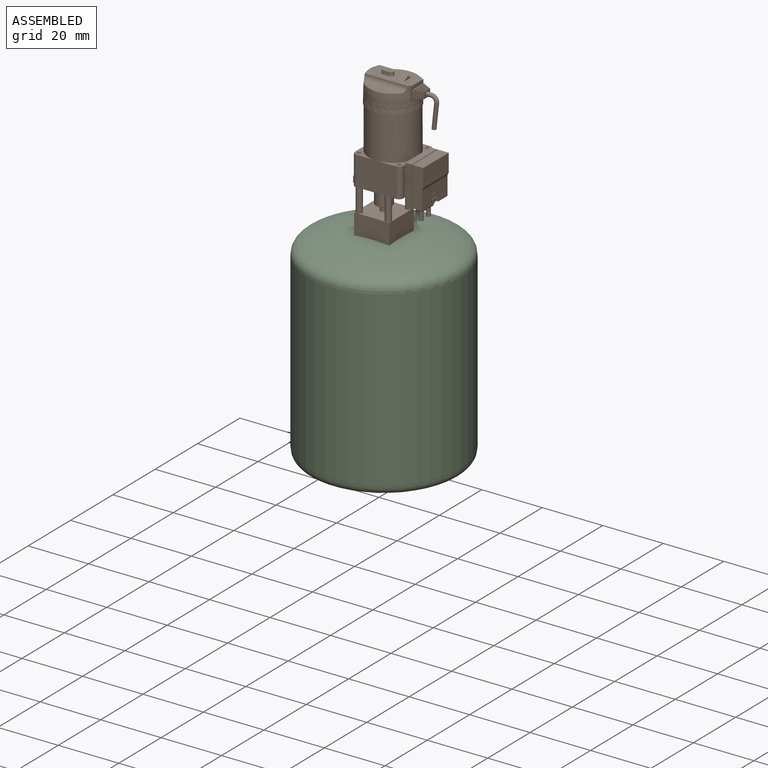
[diagram: assembled view]
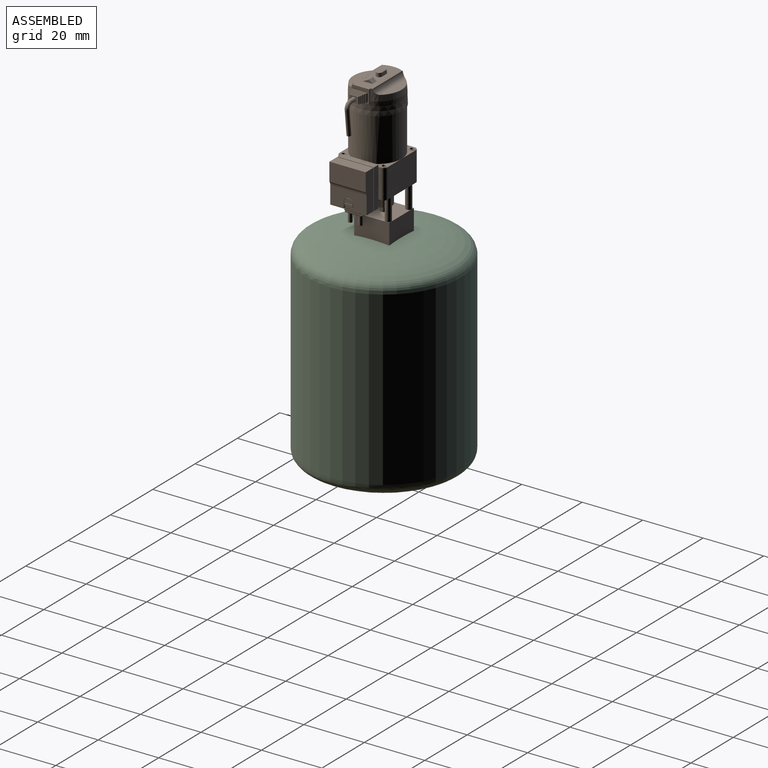
[diagram: assembled view, second angle]
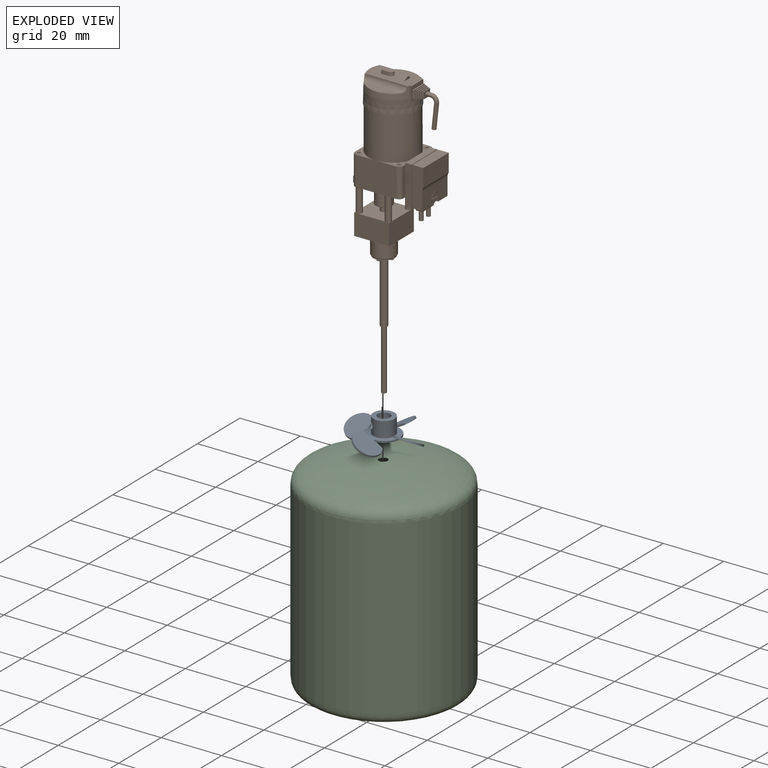
[diagram: exploded view]
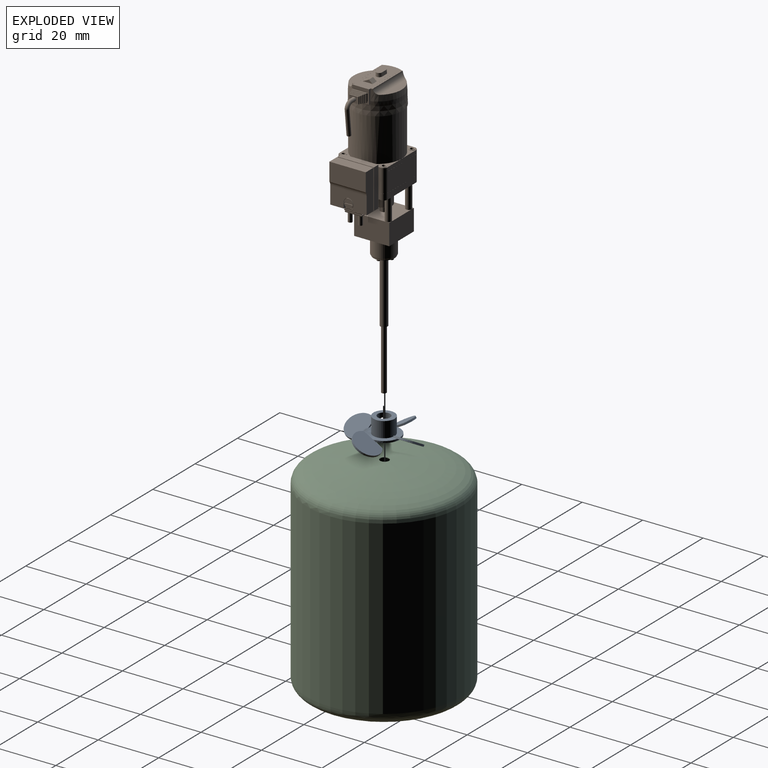
[diagram: exploded view, second angle]
ASSEMBLY  parts=3 mates=2
PART A: 33 faces, bbox 25x8x25 mm
  f0: cylinder r=2.04mm len=6mm, axis (0,-1,0), area 73.3mm2, adj f8,f10,f32
  f1: cylinder r=3.5mm len=7mm, axis (0,-1,0), area 109mm2, adj f3,f10,f31
  f2: plane 10.5x10.5mm, normal (0,-1,0), area 60.6mm2, adj f4,f5,f6,f7,f9,f11,f15,f16
  f3: plane 10.5x10.5mm, normal (0,1,0), area 48.1mm2, adj f1,f4,f5,f6,f7,f12,f14,f17
  f4: cylinder r=5.25mm len=5.17mm, axis (0,-1,0), area 4.4mm2, adj f2,f3,f17,f20,f26,f29
  f5: cylinder r=5.25mm len=5.17mm, axis (0,-1,0), area 4.4mm2, adj f2,f3,f11,f14,f28,f30
  f6: cylinder r=5.25mm len=5.17mm, axis (0,-1,0), area 4.4mm2, adj f2,f3,f12,f15,f21,f24
  f7: cylinder r=5.25mm len=5.17mm, axis (0,-1,0), area 4.4mm2, adj f2,f3,f16,f19,f22,f25
  f8: plane 5.75x5.75mm, normal (0,-1,0), area 12.9mm2, adj f0,f9
  f9: cylinder r=2.88mm len=5.75mm, axis (0,-1,0), area 4.5mm2, adj f2,f8
  f10: plane 7x7mm, normal (0,1,0), area 25.4mm2, adj f0,f1
  f11: plane 3.3x2.08mm, normal (0,0,-1), area 1.9mm2, adj f2,f5,f13,f14,f15
  f12: plane 3.3x2.08mm, normal (0,0,-1), area 1.9mm2, adj f3,f6,f13,f14,f15
  f13: cylinder r=4.5mm len=8.09mm, axis (-0.5,-0.87,0), area 12.1mm2, adj f11,f12,f14,f15
  f14: plane 7.79x7.28mm, normal (0.5,0.87,0), area 55.1mm2, adj f3,f5,f11,f12,f13
  f15: plane 7.79x7.28mm, normal (-0.5,-0.87,0), area 55.1mm2, adj f2,f6,f11,f12,f13
  f16: plane 3.3x2.08mm, normal (0,0,1), area 1.9mm2, adj f2,f7,f18,f19,f20
  f17: plane 3.3x2.08mm, normal (0,0,1), area 1.9mm2, adj f3,f4,f18,f19,f20
  f18: cylinder r=4.5mm len=8.09mm, axis (0.5,-0.87,0), area 12.1mm2, adj f16,f17,f19,f20
  f19: plane 7.79x7.28mm, normal (-0.5,0.87,0), area 55.1mm2, adj f3,f7,f16,f17,f18
  f20: plane 7.79x7.28mm, normal (0.5,-0.87,0), area 55.1mm2, adj f2,f4,f16,f17,f18
  f21: plane 3.3x2.08mm, normal (1,0,0), area 1.9mm2, adj f2,f6,f23,f24,f25
  f22: plane 3.3x2.08mm, normal (1,0,0), area 1.9mm2, adj f3,f7,f23,f24,f25
  f23: cylinder r=4.5mm len=8.09mm, axis (0,-0.87,-0.5), area 12.1mm2, adj f21,f22,f24,f25
  f24: plane 7.79x7.28mm, normal (0,0.87,0.5), area 55.1mm2, adj f3,f6,f21,f22,f23
  f25: plane 7.79x7.28mm, normal (0,-0.87,-0.5), area 55.1mm2, adj f2,f7,f21,f22,f23
  f26: plane 3.3x2.08mm, normal (-1,0,0), area 1.9mm2, adj f2,f4,f27,f29,f30
  f27: cylinder r=4.5mm len=8.09mm, axis (0,-0.87,0.5), area 12.1mm2, adj f26,f28,f29,f30
  f28: plane 3.3x2.08mm, normal (-1,0,0), area 1.9mm2, adj f3,f5,f27,f29,f30
  f29: plane 7.79x7.28mm, normal (0,0.87,-0.5), area 55.1mm2, adj f3,f4,f26,f27,f28
  f30: plane 7.79x7.28mm, normal (0,-0.87,0.5), area 55.1mm2, adj f2,f5,f26,f27,f28
  f31: cone r=1.25mm half-angle=45deg, axis (-0.71,0,0.71), area 1.2mm2, adj f1,f32
  f32: cylinder r=1.03mm len=2.54mm, axis (0.71,0,-0.71), area 9mm2, adj f0,f31
PART B: 294 faces, bbox 24.3x96.7x16.4 mm
  f0: plane 10.75x0.2mm, normal (0,1,0), area 2.1mm2, adj f87,f215,f242,f244
  f1: plane 10.75x0.2mm, normal (0,-1,0), area 2.1mm2, adj f87,f215,f242,f244
  f2: plane 11.6x0.25mm, normal (0,-1,0), area 1.5mm2, adj f11,f12,f217,f218,f226,f241,f246
  f3: plane 11.6x0.25mm, normal (0,1,0), area 2.9mm2, adj f217,f218,f241,f246
  f4: plane 10.75x0.19mm, normal (0,1,0), area 2mm2, adj f5,f215,f243,f245
  f5: plane 10.75x1.2mm, normal (-1,0,0), area 12.9mm2, adj f4,f6,f243,f245
  f6: plane 10.75x0.19mm, normal (0,-1,0), area 2mm2, adj f5,f215,f243,f245
  f7: plane 13x3.6mm, normal (0,0,1), area 44.2mm2, adj f218,f219,f220,f221,f222,f223
  f8: plane 13x2.15mm, normal (0,0,1), area 28mm2, adj f215,f216,f217,f224
  f9: plane 13x2.15mm, normal (0,0,-1), area 28mm2, adj f215,f216,f217,f224
  f10: plane 13x3.6mm, normal (0,0,-1), area 44.2mm2, adj f218,f219,f220,f221,f222,f223
  f11: plane 0.23x0.2mm, normal (0,0,1), area 0mm2, adj f2,f218,f226,f227
  f12: plane 0.23x0.2mm, normal (0,0,-1), area 0mm2, adj f2,f218,f226,f240
  f13: plane 6.4x0.4mm, normal (-0.98,-0.22,0), area 2.6mm2, adj f32,f216,f227,f240
  f14: plane 5.72x0.2mm, normal (-1,0,0), area 1.1mm2, adj f30,f32,f228,f239
  f15: plane 6.13x0.4mm, normal (-0.98,-0.22,0), area 2.5mm2, adj f28,f30,f229,f238
  f16: plane 5.44x0.2mm, normal (-1,0,0), area 1.1mm2, adj f26,f28,f230,f237
  f17: plane 5.85x0.4mm, normal (-0.98,-0.22,0), area 2.4mm2, adj f24,f26,f231,f236
  f18: plane 5.17x0.2mm, normal (-1,0,0), area 1mm2, adj f22,f24,f232,f235
  f19: plane 5.58x0.4mm, normal (-0.98,-0.22,0), area 2.3mm2, adj f20,f22,f233,f234
  f20: plane 5.4x2mm, normal (0,-1,0), area 8mm2, adj f19,f21,f233,f234,f290,f292
  f21: plane 5.58x0.4mm, normal (0.98,-0.22,0), area 2.3mm2, adj f20,f22,f233,f234
  f22: plane 5.58x2.18mm, normal (0,1,0), area 2mm2, adj f18,f19,f21,f23,f232,f233,f234,f235
  f23: plane 5.17x0.2mm, normal (1,0,0), area 1mm2, adj f22,f24,f232,f235
  f24: plane 5.67x2.27mm, normal (0,-1,0), area 2.7mm2, adj f17,f18,f23,f25,f231,f232,f235,f236
  f25: plane 5.85x0.4mm, normal (0.98,-0.22,0), area 2.4mm2, adj f24,f26,f231,f236
  f26: plane 5.85x2.46mm, normal (0,1,0), area 2.1mm2, adj f16,f17,f25,f27,f230,f231,f236,f237
  f27: plane 5.44x0.2mm, normal (1,0,0), area 1.1mm2, adj f26,f28,f230,f237
  f28: plane 5.95x2.55mm, normal (0,-1,0), area 2.9mm2, adj f15,f16,f27,f29,f229,f230,f237,f238
  f29: plane 6.13x0.4mm, normal (0.98,-0.22,0), area 2.5mm2, adj f28,f30,f229,f238
  f30: plane 6.13x2.73mm, normal (0,1,0), area 2.3mm2, adj f14,f15,f29,f31,f228,f229,f238,f239
  f31: plane 5.72x0.2mm, normal (1,0,0), area 1.1mm2, adj f30,f32,f228,f239
  f32: plane 6.22x2.82mm, normal (0,-1,0), area 3.1mm2, adj f13,f14,f31,f33,f227,f228,f239,f240
  f33: plane 6.4x0.4mm, normal (0.98,-0.22,0), area 2.6mm2, adj f32,f219,f227,f240
  f34: plane 4.28x3.08mm, normal (0,1,0), area 6.8mm2, adj f205,f206,f207,f208,f211,f212,f213,f214
  f35: plane 12.68x5.6mm, normal (0,1,0), area 45mm2, adj f65,f163,f165,f188,f199,f202,f203,f204
  f36: plane 2.43x0.42mm, normal (0.34,0,-0.94), area 1.1mm2, adj f65,f166,f167,f177
  f37: plane 2.92x0.3mm, normal (0.34,0,-0.94), area 0.9mm2, adj f62,f166,f168,f178
  f38: plane 2.24x0.3mm, normal (0.34,0,-0.94), area 0.7mm2, adj f60,f62,f169,f179
  f39: plane 2.76x0.3mm, normal (0.34,0,-0.94), area 0.9mm2, adj f58,f60,f170,f180
  f40: plane 2.08x0.3mm, normal (0.34,0,-0.94), area 0.7mm2, adj f56,f58,f171,f181
  f41: plane 2.6x0.3mm, normal (0.34,0,-0.94), area 0.8mm2, adj f54,f56,f172,f182
  f42: plane 1.92x0.3mm, normal (0.34,0,-0.94), area 0.6mm2, adj f52,f54,f173,f183
  f43: plane 2.44x0.3mm, normal (0.34,0,-0.94), area 0.8mm2, adj f50,f52,f174,f184
  f44: plane 1.76x0.3mm, normal (0.34,0,-0.94), area 0.5mm2, adj f48,f50,f175,f185
  f45: plane 2.28x0.3mm, normal (0.34,0,-0.94), area 0.7mm2, adj f46,f48,f176,f186
  f46: plane 3x2.2mm, normal (1,0,0), area 5.2mm2, adj f45,f47,f176,f186,f286
  f47: plane 2.28x0.3mm, normal (0.34,0,0.94), area 0.7mm2, adj f46,f48,f176,f186
  f48: plane 3.22x2.28mm, normal (-1,0,0), area 2.9mm2, adj f44,f45,f47,f49,f175,f176,f185,f186
  f49: plane 1.76x0.3mm, normal (0.34,0,0.94), area 0.5mm2, adj f48,f50,f175,f185
  f50: plane 3.44x2.36mm, normal (1,0,0), area 3.1mm2, adj f43,f44,f49,f51,f174,f175,f184,f185
  f51: plane 2.44x0.3mm, normal (0.34,0,0.94), area 0.8mm2, adj f50,f52,f174,f184
  f52: plane 3.66x2.44mm, normal (-1,0,0), area 3.3mm2, adj f42,f43,f51,f53,f173,f174,f183,f184
  f53: plane 1.92x0.3mm, normal (0.34,0,0.94), area 0.6mm2, adj f52,f54,f173,f183
  f54: plane 3.88x2.52mm, normal (1,0,0), area 3.5mm2, adj f41,f42,f53,f55,f172,f173,f182,f183
  f55: plane 2.6x0.3mm, normal (0.34,0,0.94), area 0.8mm2, adj f54,f56,f172,f182
  f56: plane 4.1x2.6mm, normal (-1,0,0), area 3.7mm2, adj f40,f41,f55,f57,f171,f172,f181,f182
  f57: plane 2.08x0.3mm, normal (0.34,0,0.94), area 0.7mm2, adj f56,f58,f171,f181
  f58: plane 4.32x2.68mm, normal (1,0,0), area 3.8mm2, adj f39,f40,f57,f59,f170,f171,f180,f181
  f59: plane 2.76x0.3mm, normal (0.34,0,0.94), area 0.9mm2, adj f58,f60,f170,f180
  f60: plane 4.54x2.76mm, normal (-1,0,0), area 4mm2, adj f38,f39,f59,f61,f169,f170,f179,f180
  f61: plane 2.24x0.3mm, normal (0.34,0,0.94), area 0.7mm2, adj f60,f62,f169,f179
  f62: plane 4.76x2.84mm, normal (1,0,0), area 4.2mm2, adj f37,f38,f61,f63,f168,f169,f178,f179
  f63: plane 2.92x0.3mm, normal (0.34,0,0.94), area 0.9mm2, adj f62,f166,f168,f178
  f64: plane 2.43x0.42mm, normal (0.34,0,0.94), area 1.1mm2, adj f65,f166,f167,f177
  f65: plane 5.6x4.6mm, normal (1,0,0), area 14.4mm2, adj f35,f36,f64,f162,f163,f164,f165,f167
  f66: torus R=7.61mm, axis (0,-1,0), area 0.2mm2, adj f67,f70,f161,f163,f198,f201
  f67: plane 14.69x6.8mm, normal (0,1,0), area 32.3mm2, adj f66,f68,f69,f159,f161,f197,f198,f200
  f68: torus R=7.61mm, axis (0,-1,0), area 0.2mm2, adj f67,f70,f159,f165,f200,f201
  f69: torus R=7.61mm, axis (0,-1,0), area 2.1mm2, adj f67,f70,f159,f161
  f70: cone r=7.81mm half-angle=4.3deg, axis (0,-1,0), area 101.7mm2, adj f66,f68,f69,f154,f158,f159,f160,f161
  f71: plane 8x8mm, normal (0,1,0), area 10.2mm2, adj f138,f139,f140,f146,f157
  f72: plane 8x8mm, normal (0,1,0), area 10.2mm2, adj f136,f137,f138,f144,f157
  f73: plane 8x8mm, normal (0,1,0), area 10.2mm2, adj f134,f135,f136,f142,f157
  f74: cylinder r=1.36mm len=6.39mm, axis (0,1,0), area 13.7mm2, adj f75,f81,f122,f132
  f75: plane 13.28x6.39mm, normal (0,0,-1), area 84.9mm2, adj f74,f76,f122,f132
  f76: cylinder r=1.36mm len=6.39mm, axis (0,1,0), area 13.7mm2, adj f75,f77,f122,f132
  f77: plane 13.28x6.39mm, normal (1,0,0), area 84.9mm2, adj f76,f78,f122,f132
  f78: cylinder r=1.36mm len=6.39mm, axis (0,1,0), area 13.7mm2, adj f77,f79,f122,f132
  f79: plane 13.28x6.39mm, normal (0,0,1), area 84.9mm2, adj f78,f80,f122,f132
  f80: cylinder r=1.36mm len=6.39mm, axis (0,1,0), area 13.7mm2, adj f79,f81,f122,f132
  f81: plane 13.28x6.39mm, normal (-1,0,0), area 84.9mm2, adj f74,f80,f122,f132
  f82: plane 2x0.64mm, normal (-1,0,0), area 1.3mm2, adj f84,f110,f112,f113
  f83: plane 2x0.64mm, normal (-1,0,0), area 1.3mm2, adj f90,f111,f112,f113
  f84: cylinder r=1.36mm len=2mm, axis (0,1,0), area 4.3mm2, adj f82,f85,f112,f113
  f85: plane 13.28x2mm, normal (0,0,1), area 26.6mm2, adj f84,f86,f112,f113
  f86: cylinder r=1.36mm len=2mm, axis (0,1,0), area 4.3mm2, adj f85,f87,f112,f113
  f87: plane 13.28x2mm, normal (1,0,0), area 13.7mm2, adj f0,f1,f86,f88,f112,f113,f242,f244
  f88: cylinder r=1.36mm len=2mm, axis (0,1,0), area 4.3mm2, adj f87,f89,f112,f113
  f89: plane 13.28x2mm, normal (0,0,-1), area 26.6mm2, adj f88,f90,f112,f113
  f90: cylinder r=1.36mm len=2mm, axis (0,1,0), area 4.3mm2, adj f83,f89,f112,f113
  f91: plane 11.6x11.6mm, normal (0,1,0), area 116.6mm2, adj f95,f96,f97,f98,f101,f102,f103,f104
  f92: plane 1x1mm, normal (0,1,0), area 0.2mm2, adj f95,f98,f103
  f93: plane 1x1mm, normal (0,1,0), area 0.2mm2, adj f97,f98,f102
  f94: plane 1x1mm, normal (0,1,0), area 0.2mm2, adj f95,f96,f101
  f95: plane 11.6x7mm, normal (-1,0,0), area 81.2mm2, adj f91,f92,f94,f96,f98,f100
  f96: plane 11.6x7mm, normal (0,0,1), area 81.2mm2, adj f91,f94,f95,f97,f99,f100
  f97: plane 11.6x7mm, normal (1,0,0), area 81.2mm2, adj f91,f93,f96,f98,f99,f100
  f98: plane 11.6x7mm, normal (0,0,-1), area 81.2mm2, adj f91,f92,f93,f95,f97,f100
  f99: plane 1x1mm, normal (0,1,0), area 0.2mm2, adj f96,f97,f104
  f100: plane 11.6x11.6mm, normal (0,-1,0), area 93mm2, adj f95,f96,f97,f98,f258
  f101: cylinder r=1mm len=9mm, axis (0,-1,0), area 56.5mm2, adj f91,f94,f112
  f102: cylinder r=1mm len=9mm, axis (0,-1,0), area 56.5mm2, adj f91,f93,f112
  f103: cylinder r=1mm len=9mm, axis (0,-1,0), area 56.5mm2, adj f91,f92,f112
  f104: cylinder r=1mm len=9mm, axis (0,-1,0), area 56.5mm2, adj f91,f99,f112
  f105: cylinder r=2.7mm len=6.9mm, axis (0,-1,0), area 117.1mm2, adj f106,f112
  f106: cone r=2.7mm half-angle=45deg, axis (0,1,0), area 2.4mm2, adj f105,f107
  f107: plane 5.2x5.2mm, normal (0,-1,0), area 16.7mm2, adj f106,f108
  f108: cylinder r=1.2mm len=2.4mm, axis (0,-1,0), area 15.1mm2, adj f91,f107
  f109: plane 12x2mm, normal (-1,0,0), area 24mm2, adj f110,f111,f112,f113
  f110: plane 2x1mm, normal (0,0,1), area 2mm2, adj f82,f109,f112,f113
  f111: plane 2x1mm, normal (0,0,-1), area 2mm2, adj f83,f109,f112,f113
  f112: plane 17x16mm, normal (0,-1,0), area 227.1mm2, adj f82,f83,f84,f85,f86,f87,f88,f89
  f113: plane 17x16mm, normal (0,1,0), area 12.6mm2, adj f82,f83,f84,f85,f86,f87,f88,f89
  f114: cylinder r=1.35mm len=1.35mm, axis (0,-1,0), area 0mm2, adj f113,f115,f121,f122
  f115: plane 13.28x0.01mm, normal (0,0,-1), area 0.1mm2, adj f113,f114,f116,f122
  f116: cylinder r=1.35mm len=1.35mm, axis (0,-1,0), area 0mm2, adj f113,f115,f117,f122
  f117: plane 13.28x0.01mm, normal (1,0,0), area 0.1mm2, adj f113,f116,f118,f122
  f118: cylinder r=1.35mm len=1.35mm, axis (0,-1,0), area 0mm2, adj f113,f117,f119,f122
  f119: plane 13.28x0.01mm, normal (0,0,1), area 0.1mm2, adj f113,f118,f120,f122
  f120: cylinder r=1.35mm len=1.35mm, axis (0,-1,0), area 0mm2, adj f113,f119,f121,f122
  f121: plane 13.28x0.01mm, normal (-1,0,0), area 0.1mm2, adj f113,f114,f120,f122
  f122: plane 16x16mm, normal (0,-1,0), area 0.6mm2, adj f74,f75,f76,f77,f78,f79,f80,f81
  f123: cylinder r=1.35mm len=1.35mm, axis (0,-1,0), area 0mm2, adj f124,f130,f131,f132
  f124: plane 13.28x0.01mm, normal (0,0,-1), area 0.1mm2, adj f123,f125,f131,f132
  f125: cylinder r=1.35mm len=1.35mm, axis (0,-1,0), area 0mm2, adj f124,f126,f131,f132
  f126: plane 13.28x0.01mm, normal (1,0,0), area 0.1mm2, adj f125,f127,f131,f132
  f127: cylinder r=1.35mm len=1.35mm, axis (0,-1,0), area 0mm2, adj f126,f128,f131,f132
  f128: plane 13.28x0.01mm, normal (0,0,1), area 0.1mm2, adj f127,f129,f131,f132
  f129: cylinder r=1.35mm len=1.35mm, axis (0,-1,0), area 0mm2, adj f128,f130,f131,f132
  f130: plane 13.28x0.01mm, normal (-1,0,0), area 0.1mm2, adj f123,f129,f131,f132
  f131: plane 16x16mm, normal (0,-1,0), area 0.6mm2, adj f123,f124,f125,f126,f127,f128,f129,f130
  f132: plane 16x16mm, normal (0,1,0), area 0.6mm2, adj f74,f75,f76,f77,f78,f79,f80,f81
  f133: plane 8x8mm, normal (0,1,0), area 10.2mm2, adj f134,f140,f141,f148,f157
  f134: plane 13.28x1.29mm, normal (-1,0,0), area 17.1mm2, adj f73,f131,f133,f135,f141
  f135: cylinder r=1.36mm len=1.36mm, axis (0,1,0), area 2.8mm2, adj f73,f131,f134,f136
  f136: plane 13.28x1.29mm, normal (0,0,1), area 17.1mm2, adj f72,f73,f131,f135,f137
  f137: cylinder r=1.36mm len=1.36mm, axis (0,1,0), area 2.8mm2, adj f72,f131,f136,f138
  f138: plane 13.28x1.29mm, normal (1,0,0), area 17.1mm2, adj f71,f72,f131,f137,f139
  f139: cylinder r=1.36mm len=1.36mm, axis (0,1,0), area 2.8mm2, adj f71,f131,f138,f140
  f140: plane 13.28x1.29mm, normal (0,0,-1), area 17.1mm2, adj f71,f131,f133,f139,f141
  f141: cylinder r=1.36mm len=1.36mm, axis (0,1,0), area 2.8mm2, adj f131,f133,f134,f140
  f142: cylinder r=1mm len=2mm, axis (0,1,0), area 0.6mm2, adj f73,f143
  f143: plane 2x2mm, normal (0,1,0), area 2.2mm2, adj f142,f150
  f144: cylinder r=1mm len=2mm, axis (0,1,0), area 0.6mm2, adj f72,f145
  f145: plane 2x2mm, normal (0,1,0), area 2.2mm2, adj f144,f151
  f146: cylinder r=1mm len=2mm, axis (0,1,0), area 0.6mm2, adj f71,f147
  f147: plane 2x2mm, normal (0,1,0), area 2.2mm2, adj f146,f153
  f148: cylinder r=1mm len=2mm, axis (0,1,0), area 0.6mm2, adj f133,f149
  f149: plane 2x2mm, normal (0,1,0), area 2.2mm2, adj f148,f152
  f150: cylinder r=0.55mm len=9.8mm, axis (0,1,0), area 33.9mm2, adj f112,f143
  f151: cylinder r=0.55mm len=9.8mm, axis (0,-1,0), area 33.9mm2, adj f112,f145
  f152: cylinder r=0.55mm len=9.8mm, axis (0,1,0), area 33.9mm2, adj f112,f149
  f153: cylinder r=0.55mm len=9.8mm, axis (0,-1,0), area 33.9mm2, adj f112,f147
  f154: cylinder r=8.08mm len=16.16mm, axis (0,-1,0), area 65.9mm2, adj f70,f155,f162,f163,f164,f165
  f155: cone r=8.08mm half-angle=2.3deg, axis (0,-1,0), area 153.6mm2, adj f154,f156
  f156: plane 16.4x16.4mm, normal (0,-1,0), area 10.2mm2, adj f155,f157
  f157: cylinder r=8mm len=16mm, axis (0,-1,0), area 718.8mm2, adj f71,f72,f73,f133,f156
  f158: plane 11.99x2.74mm, normal (0,1,0), area 22.8mm2, adj f70,f159
  f159: cylinder r=1.8mm len=14.07mm, axis (-1,0,0), area 38.1mm2, adj f67,f68,f69,f70,f158
  f160: plane 11.99x2.74mm, normal (0,1,0), area 22.8mm2, adj f70,f161
  f161: cylinder r=1.8mm len=14.07mm, axis (-1,0,0), area 38.1mm2, adj f66,f67,f69,f70,f160
  f162: plane 2.8x0.5mm, normal (0,-1,0), area 0.5mm2, adj f65,f154,f165
  f163: plane 12.68x4.6mm, normal (0,0,1), area 3mm2, adj f35,f65,f66,f70,f154,f164,f199,f201
  f164: plane 2.8x0.5mm, normal (0,-1,0), area 0.5mm2, adj f65,f154,f163
  f165: plane 12.68x4.6mm, normal (0,0,-1), area 3mm2, adj f35,f65,f68,f70,f154,f162,f199,f201
  f166: plane 4.98x2.92mm, normal (-1,0,0), area 4.4mm2, adj f36,f37,f63,f64,f167,f168,f177,f178
  f167: plane 4.69x0.42mm, normal (0.13,-0.99,0), area 1.9mm2, adj f36,f64,f65,f166
  f168: plane 4.98x0.3mm, normal (0.13,-0.99,0), area 1.5mm2, adj f37,f62,f63,f166
  f169: plane 4.16x0.3mm, normal (0.13,-0.99,0), area 1.2mm2, adj f38,f60,f61,f62
  f170: plane 4.54x0.3mm, normal (0.13,-0.99,0), area 1.3mm2, adj f39,f58,f59,f60
  f171: plane 3.72x0.3mm, normal (0.13,-0.99,0), area 1.1mm2, adj f40,f56,f57,f58
  f172: plane 4.1x0.3mm, normal (0.13,-0.99,0), area 1.2mm2, adj f41,f54,f55,f56
  f173: plane 3.28x0.3mm, normal (0.13,-0.99,0), area 1mm2, adj f42,f52,f53,f54
  f174: plane 3.66x0.3mm, normal (0.13,-0.99,0), area 1.1mm2, adj f43,f50,f51,f52
  f175: plane 2.84x0.3mm, normal (0.13,-0.99,0), area 0.8mm2, adj f44,f48,f49,f50
  f176: plane 3.22x0.3mm, normal (0.13,-0.99,0), area 0.9mm2, adj f45,f46,f47,f48
  f177: plane 4.69x0.42mm, normal (0.13,0.99,0), area 1.9mm2, adj f36,f64,f65,f166
  f178: plane 4.98x0.3mm, normal (0.13,0.99,0), area 1.5mm2, adj f37,f62,f63,f166
  f179: plane 4.16x0.3mm, normal (0.13,0.99,0), area 1.2mm2, adj f38,f60,f61,f62
  f180: plane 4.54x0.3mm, normal (0.13,0.99,0), area 1.3mm2, adj f39,f58,f59,f60
  f181: plane 3.72x0.3mm, normal (0.13,0.99,0), area 1.1mm2, adj f40,f56,f57,f58
  f182: plane 4.1x0.3mm, normal (0.13,0.99,0), area 1.2mm2, adj f41,f54,f55,f56
  f183: plane 3.28x0.3mm, normal (0.13,0.99,0), area 1mm2, adj f42,f52,f53,f54
  f184: plane 3.66x0.3mm, normal (0.13,0.99,0), area 1.1mm2, adj f43,f50,f51,f52
  f185: plane 2.84x0.3mm, normal (0.13,0.99,0), area 0.8mm2, adj f44,f48,f49,f50
  f186: plane 3.22x0.3mm, normal (0.13,0.99,0), area 0.9mm2, adj f45,f46,f47,f48
  f187: cylinder r=2mm len=4mm, axis (0,1,0), area 0.1mm2, adj f189,f194,f196
  f188: cylinder r=2.01mm len=4.02mm, axis (0,1,0), area 0.1mm2, adj f35,f189
  f189: plane 4.02x4.02mm, normal (0,1,0), area 0.1mm2, adj f187,f188
  f190: plane 3.8x1.8mm, normal (0,1,0), area 6.1mm2, adj f191,f192,f193,f195
  f191: plane 2x1.2mm, normal (0,0.08,1), area 2.4mm2, adj f190,f192,f194,f195
  f192: cone r=1mm half-angle=4.8deg, axis (0,-1,0), area 3.6mm2, adj f190,f191,f193,f194,f196
  f193: plane 2x1.2mm, normal (0,0.08,-1), area 2.4mm2, adj f190,f192,f195,f196
  f194: plane 4x2mm, normal (0,1,0), area 2.7mm2, adj f187,f191,f192,f195
  f195: cone r=1mm half-angle=4.8deg, axis (0,-1,0), area 3.6mm2, adj f190,f191,f193,f194,f196
  f196: plane 4x2mm, normal (0,1,0), area 2.7mm2, adj f187,f192,f193,f195
  f197: plane 5.62x0.01mm, normal (1,0,0), area 0.1mm2, adj f67,f198,f200,f201
  f198: plane 11.75x0.01mm, normal (0,0,-1), area 0.1mm2, adj f66,f67,f197,f201
  f199: plane 5.6x0.01mm, normal (-1,0,0), area 0.1mm2, adj f35,f163,f165,f201
  f200: plane 11.75x0.01mm, normal (0,0,1), area 0.1mm2, adj f67,f68,f197,f201
  f201: plane 11.76x5.62mm, normal (0,1,0), area 0.3mm2, adj f66,f68,f163,f165,f197,f198,f199,f200
  f202: plane 4.3x0.01mm, normal (1,0,0), area 0mm2, adj f35,f203,f209,f210
  f203: plane 3.1x0.01mm, normal (0,0,-1), area 0mm2, adj f35,f202,f204,f210
  f204: plane 4.3x0.01mm, normal (-1,0,0), area 0mm2, adj f35,f203,f209,f210
  f205: plane 4.28x0.01mm, normal (-1,0,0), area 0mm2, adj f34,f206,f208,f210
  f206: plane 3.08x0.01mm, normal (0,0,-1), area 0mm2, adj f34,f205,f207,f210
  f207: plane 4.28x0.01mm, normal (1,0,0), area 0mm2, adj f34,f206,f208,f210
  f208: plane 3.08x0.01mm, normal (0,0,1), area 0mm2, adj f34,f205,f207,f210
  f209: plane 3.1x0.01mm, normal (0,0,1), area 0mm2, adj f35,f202,f204,f210
  f210: plane 4.3x3.1mm, normal (0,1,0), area 0.1mm2, adj f202,f203,f204,f205,f206,f207,f208,f209
  f211: plane 2x2mm, normal (0,0.89,0.45), area 4.5mm2, adj f34,f212,f213,f214
  f212: plane 2x1.2mm, normal (0,0.77,-0.64), area 3.1mm2, adj f34,f211,f213,f214
  f213: plane 3.2x1mm, normal (1,0,0), area 1.6mm2, adj f34,f211,f212
  f214: plane 3.2x1mm, normal (-1,0,0), area 1.6mm2, adj f34,f211,f212
  f215: plane 13x12mm, normal (-1,0,0), area 130.2mm2, adj f0,f1,f4,f6,f8,f9,f216,f224
  f216: plane 12x2.15mm, normal (0,-1,0), area 17.2mm2, adj f8,f9,f13,f215,f217,f227,f240
  f217: plane 13x12mm, normal (1,0,0), area 9.8mm2, adj f2,f3,f8,f9,f216,f224,f225,f241
  f218: plane 13x12mm, normal (-1,0,0), area 8.6mm2, adj f2,f3,f7,f10,f11,f12,f219,f223
  f219: plane 12x3.2mm, normal (0,-1,0), area 26.2mm2, adj f7,f10,f33,f218,f220,f227,f240,f248
  f220: plane 12x5.8mm, normal (1,0,0), area 59.5mm2, adj f7,f10,f219,f221,f247,f248,f249
  f221: cylinder r=2mm len=12mm, axis (0,0,-1), area 15.4mm2, adj f7,f10,f220,f222
  f222: plane 12x6mm, normal (1,0,0), area 72mm2, adj f7,f10,f221,f223
  f223: plane 12x3.6mm, normal (0,1,0), area 43.2mm2, adj f7,f10,f218,f222
  f224: plane 12x2.15mm, normal (0,1,0), area 25.8mm2, adj f8,f9,f215,f217
  f225: plane 6.4x0.03mm, normal (0,1,0), area 0.2mm2, adj f217,f226,f227,f240
  f226: plane 6.4x0.2mm, normal (-1,0,0), area 1.3mm2, adj f2,f11,f12,f225
  f227: plane 3x0.4mm, normal (0,-0.22,0.98), area 1.2mm2, adj f11,f13,f32,f33,f216,f219,f225
  f228: plane 2.52x0.2mm, normal (0,0,1), area 0.5mm2, adj f14,f30,f31,f32
  f229: plane 2.73x0.4mm, normal (0,-0.22,0.98), area 1.1mm2, adj f15,f28,f29,f30
  f230: plane 2.25x0.2mm, normal (0,0,1), area 0.5mm2, adj f16,f26,f27,f28
  f231: plane 2.46x0.4mm, normal (0,-0.22,0.98), area 1mm2, adj f17,f24,f25,f26
  f232: plane 1.98x0.2mm, normal (0,0,1), area 0.4mm2, adj f18,f22,f23,f24
  f233: plane 2.18x0.4mm, normal (0,-0.22,0.98), area 0.9mm2, adj f19,f20,f21,f22
  f234: plane 2.18x0.4mm, normal (0,-0.22,-0.98), area 0.9mm2, adj f19,f20,f21,f22
  f235: plane 1.98x0.2mm, normal (0,0,-1), area 0.4mm2, adj f18,f22,f23,f24
  f236: plane 2.46x0.4mm, normal (0,-0.22,-0.98), area 1mm2, adj f17,f24,f25,f26
  f237: plane 2.25x0.2mm, normal (0,0,-1), area 0.5mm2, adj f16,f26,f27,f28
  f238: plane 2.73x0.4mm, normal (0,-0.22,-0.98), area 1.1mm2, adj f15,f28,f29,f30
  f239: plane 2.52x0.2mm, normal (0,0,-1), area 0.5mm2, adj f14,f30,f31,f32
  f240: plane 3x0.4mm, normal (0,-0.22,-0.98), area 1.2mm2, adj f12,f13,f32,f33,f216,f219,f225
  f241: plane 12.6x0.25mm, normal (0,0,-1), area 3.1mm2, adj f2,f3,f217,f218
  f242: plane 1.2x0.2mm, normal (0,0,-1), area 0.2mm2, adj f0,f1,f87,f215
  f243: plane 1.2x0.19mm, normal (0,0,-1), area 0.2mm2, adj f4,f5,f6,f215
  f244: plane 1.2x0.2mm, normal (0,0,1), area 0.2mm2, adj f0,f1,f87,f215
  f245: plane 1.2x0.19mm, normal (0,0,1), area 0.2mm2, adj f4,f5,f6,f215
  f246: plane 12.6x0.25mm, normal (0,0,1), area 3.1mm2, adj f2,f3,f217,f218
  f247: cylinder r=1.6mm len=3.2mm, axis (1,0,0), area 5mm2, adj f220,f248,f249,f250
  f248: plane 1.9x1mm, normal (0,0,-1), area 1.9mm2, adj f219,f220,f247,f250
  f249: plane 1.9x1mm, normal (0,0,1), area 1.9mm2, adj f219,f220,f247,f250
  f250: plane 3.5x3.2mm, normal (1,0,0), area 3mm2, adj f219,f247,f248,f249,f251
  f251: cylinder r=1.5mm len=3mm, axis (1,0,0), area 9.4mm2, adj f250,f252
  f252: plane 3x3mm, normal (1,0,0), area 6mm2, adj f251,f253,f254,f255,f256
  f253: plane 0.4x0.2mm, normal (0,0,-1), area 0.1mm2, adj f252,f254,f256,f257
  f254: plane 2.6x0.2mm, normal (0,1,0), area 0.5mm2, adj f252,f253,f255,f257
  f255: plane 0.4x0.2mm, normal (0,0,1), area 0.1mm2, adj f252,f254,f256,f257
  f256: plane 2.6x0.2mm, normal (0,-1,0), area 0.5mm2, adj f252,f253,f255,f257
  f257: plane 2.6x0.4mm, normal (1,0,0), area 1mm2, adj f253,f254,f255,f256
  f258: cylinder r=3.64mm len=7.28mm, axis (0,-1,0), area 13.7mm2, adj f100,f259
  f259: plane 7.28x7.28mm, normal (0,-1,0), area 0.5mm2, adj f258,f260
  f260: cone r=3.62mm half-angle=45deg, axis (0,-1,0), area 6.1mm2, adj f259,f261
  f261: cylinder r=3.8mm len=7.6mm, axis (0,-1,0), area 120.1mm2, adj f260,f262
  f262: cone r=3.8mm half-angle=45deg, axis (0,1,0), area 6.1mm2, adj f261,f263
  f263: plane 7.23x7.23mm, normal (0,-1,0), area 2.6mm2, adj f262,f264
  f264: cylinder r=3.5mm len=7mm, axis (0,-1,0), area 8.8mm2, adj f263,f265
  f265: plane 7x7mm, normal (0,-1,0), area 30.9mm2, adj f264,f266,f270,f274,f278,f282
  f266: cylinder r=1.2mm len=21mm, axis (0,-1,0), area 158.3mm2, adj f265,f267
  f267: plane 2.4x2.4mm, normal (0,-1,0), area 2.5mm2, adj f266,f268
  f268: cylinder r=0.8mm len=20mm, axis (0,-1,0), area 100.5mm2, adj f267,f269
  f269: plane 1.6x1.6mm, normal (0,-1,0), area 2mm2, adj f268
  f270: cone r=0.49mm half-angle=45deg, axis (0,-1,0), area 0.3mm2, adj f265,f271
  f271: cylinder r=0.55mm len=1.1mm, axis (0,-1,0), area 1.7mm2, adj f270,f272
  f272: cone r=0.55mm half-angle=45deg, axis (0,1,0), area 0.3mm2, adj f271,f273
  f273: plane 0.98x0.98mm, normal (0,-1,0), area 0.8mm2, adj f272
  f274: cone r=0.49mm half-angle=45deg, axis (0,-1,0), area 0.3mm2, adj f265,f275
  f275: cylinder r=0.55mm len=1.1mm, axis (0,-1,0), area 1.7mm2, adj f274,f276
  f276: cone r=0.55mm half-angle=45deg, axis (0,1,0), area 0.3mm2, adj f275,f277
  f277: plane 0.98x0.98mm, normal (0,-1,0), area 0.8mm2, adj f276
  f278: cone r=0.49mm half-angle=45deg, axis (0,-1,0), area 0.3mm2, adj f265,f279
  f279: cylinder r=0.55mm len=1.1mm, axis (0,-1,0), area 1.7mm2, adj f278,f280
  f280: cone r=0.55mm half-angle=45deg, axis (0,1,0), area 0.3mm2, adj f279,f281
  f281: plane 0.98x0.98mm, normal (0,-1,0), area 0.8mm2, adj f280
  f282: cone r=0.49mm half-angle=45deg, axis (0,-1,0), area 0.3mm2, adj f265,f283
  f283: cylinder r=0.55mm len=1.1mm, axis (0,-1,0), area 1.7mm2, adj f282,f284
  f284: cone r=0.55mm half-angle=45deg, axis (0,1,0), area 0.3mm2, adj f283,f285
  f285: plane 0.98x0.98mm, normal (0,-1,0), area 0.8mm2, adj f284
  f286: cylinder r=0.67mm len=1.49mm, axis (-1,0,0), area 6.3mm2, adj f46,f287
  f287: torus R=1.73mm, axis (0,0,-1), area 12.2mm2, adj f286,f288
  f288: cylinder r=0.67mm len=8.1mm, axis (0.11,0.99,0), area 33.7mm2, adj f287,f289
  f289: plane 1.34x1.33mm, normal (-0.11,-0.99,0), area 1.4mm2, adj f288
  f290: cylinder r=0.67mm len=3mm, axis (0,1,0), area 12.6mm2, adj f20,f291
  f291: plane 1.34x1.34mm, normal (0,-1,0), area 1.4mm2, adj f290
  f292: cylinder r=0.67mm len=3mm, axis (0,1,0), area 12.6mm2, adj f20,f293
  f293: plane 1.34x1.34mm, normal (0,-1,0), area 1.4mm2, adj f292
PART C: 8 faces, bbox 50.7x50.7x71.6 mm
  f0: revolved ~50.71x50.71mm, area 2399mm2, adj f1,f6
  f1: cone r=0.27mm half-angle=4.5deg, axis (0,0,-1), area 0.4mm2, adj f0,f2
  f2: revolved ~50.2x50.2mm, area 2333.4mm2, adj f1,f3
  f3: cylinder r=25.1mm len=56.9mm, axis (0,0,1), area 8973.5mm2, adj f2,f4
  f4: revolved ~50.2x50.2mm, area 2326.7mm2, adj f3,f7
  f5: revolved ~50.71x50.71mm, area 2392.4mm2, adj f6,f7
  f6: cylinder r=25.36mm len=56.9mm, axis (0,0,1), area 9064.7mm2, adj f0,f5
  f7: cylinder r=1.47mm len=2.95mm, axis (0,0,1), area 2.4mm2, adj f4,f5
PLACE A rot(axis=(1,0,0),90deg) t=(137.95,51.08,-69.51)mm
PLACE B rot(axis=(1,0,0),90deg) t=(137.95,51.08,-16.96)mm
PLACE C t=(137.7,51.08,-56.6)mm
MATE fastened A.f0 <-> B.f105  axis (0,0,1) through (137.95,51.08,-64.36)mm
MATE fastened B.f105 <-> C.f3  axis (0,0,-1) through (137.95,51.08,-23.36)mm
